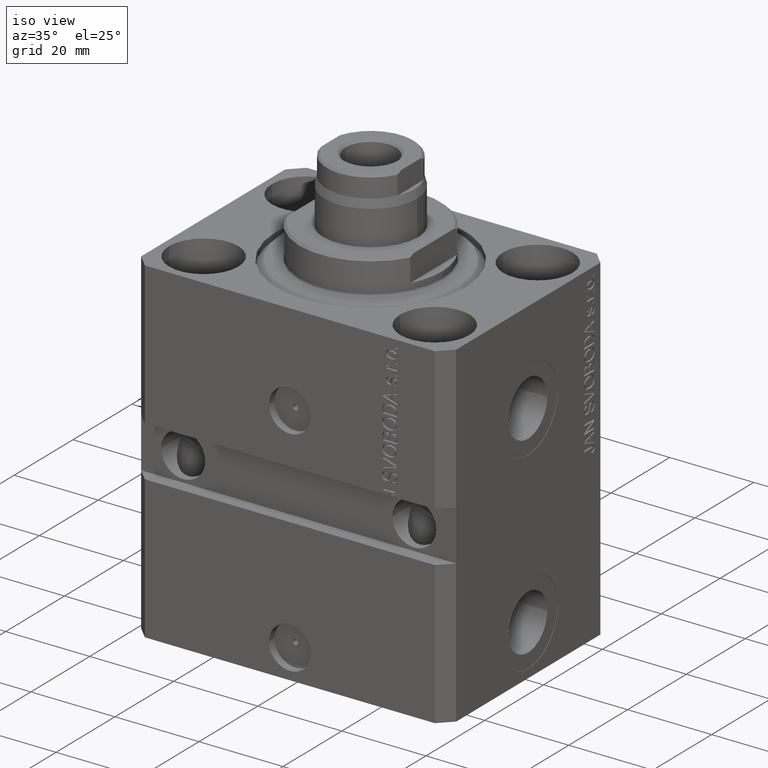
[diagram: clean part render]
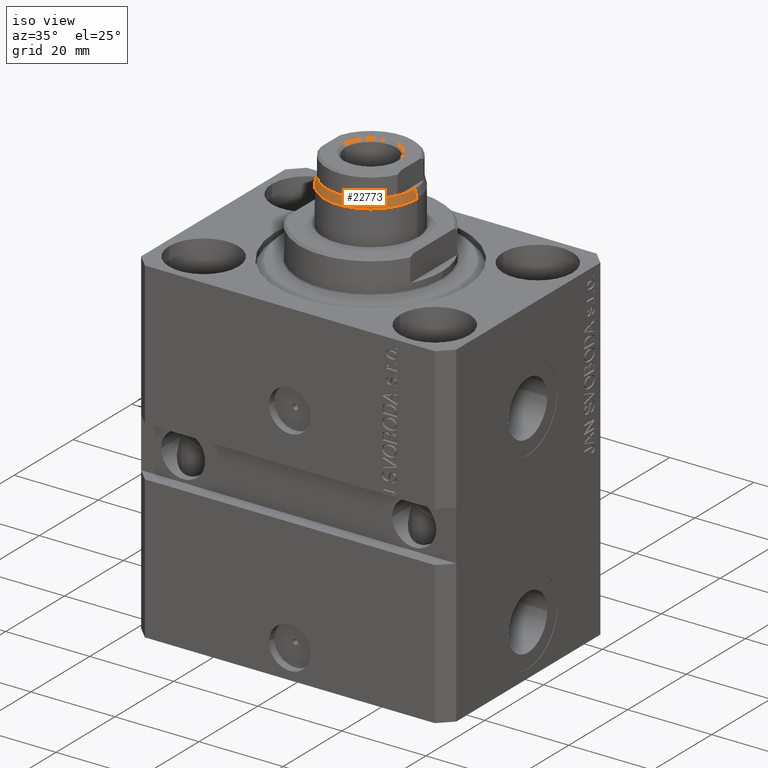
[diagram: same view with one face highlighted and labeled with its STEP entity id]
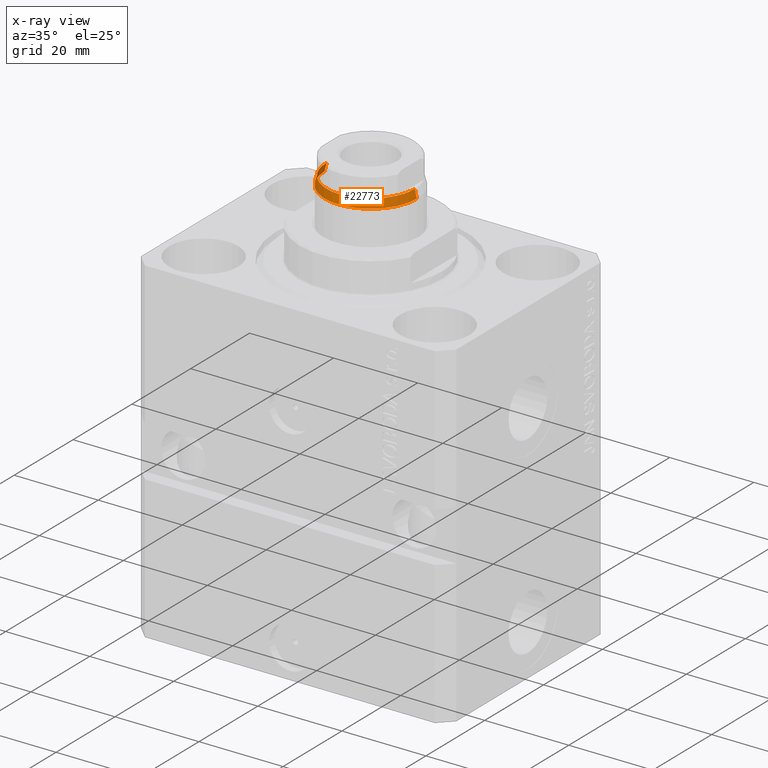
[diagram: x-ray of the same camera — body ghosted, the highlighted face saturated]
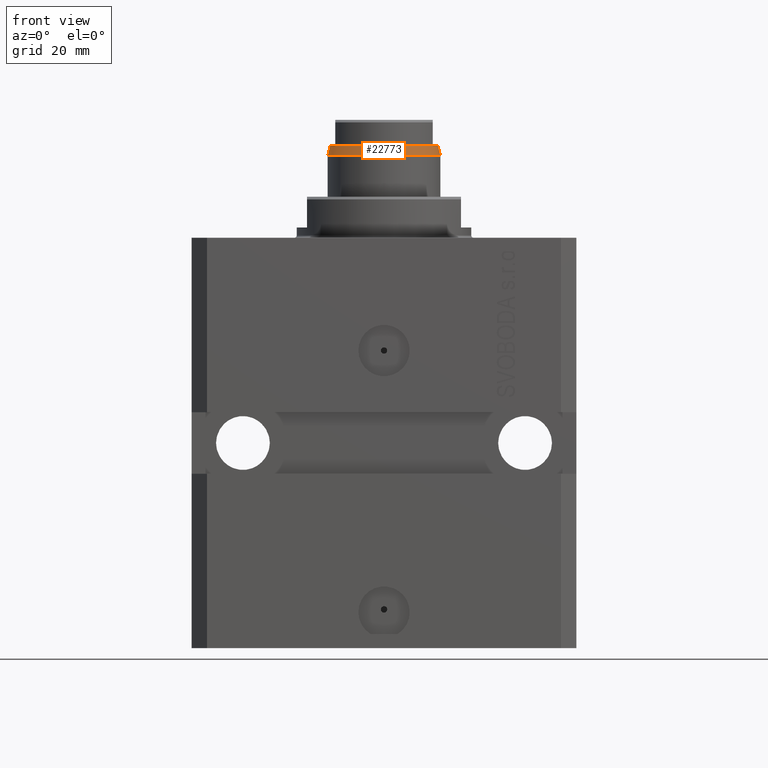
[diagram: same view with one face highlighted and labeled with its STEP entity id]
A machine part, iso view. The second image highlights one B-rep face of the part: STEP entity #22773.
The next image is the same camera in x-ray: the body ghosted, the highlighted face saturated — about 0% of this face is hidden behind the body in this view.
A second angle (front view) of the same face is appended — the face is thin or edge-on in the first view.
In plain terms, the highlighted conical surface has half-angle 14.036 deg.
Its self-contained STEP definition (entity closure, byte-faithful):
#1378 = CARTESIAN_POINT ( 'NONE',  ( 87.99999999999941735, 0.000000000000000000, -4.898580131151280951E-16 ) ) ;
#2212 = ORIENTED_EDGE ( 'NONE', *, *, #27440, .F. ) ;
#3076 = CARTESIAN_POINT ( 'NONE',  ( 85.99999999999940314, 0.000000000000000000, 11.00000000000000000 ) ) ;
#3246 = DIRECTION ( 'NONE',  ( 0.000000000000000000, 0.000000000000000000, -1.000000000000000000 ) ) ;
#3697 = DIRECTION ( 'NONE',  ( 1.000000000000000000, -0.000000000000000000, -0.000000000000000000 ) ) ;
#4603 = CARTESIAN_POINT ( 'NONE',  ( 87.99999999999941735, 0.000000000000000000, 10.50000000000000000 ) ) ;
#4800 = VERTEX_POINT ( 'NONE', #4603 ) ;
#5344 = CARTESIAN_POINT ( 'NONE',  ( 87.99999999999941735, 0.000000000000000000, 0.000000000000000000 ) ) ;
#6307 = CIRCLE ( 'NONE', #12365, 11.00000000000000000 ) ;
#6752 = EDGE_CURVE ( 'NONE', #21305, #41253, #41759, .T. ) ;
#7504 = ORIENTED_EDGE ( 'NONE', *, *, #6752, .F. ) ;
#7523 = DIRECTION ( 'NONE',  ( -0.9701425001453320984, 0.000000000000000000, 0.2425356250363321919 ) ) ;
#8441 = FACE_OUTER_BOUND ( 'NONE', #24251, .T. ) ;
#8674 = DIRECTION ( 'NONE',  ( 0.000000000000000000, 0.000000000000000000, 1.000000000000000000 ) ) ;
#9603 = EDGE_CURVE ( 'NONE', #16213, #19396, #6307, .T. ) ;
#12365 = AXIS2_PLACEMENT_3D ( 'NONE', #38805, #42814, #13954 ) ;
#13679 = DIRECTION ( 'NONE',  ( 1.000000000000000000, -0.000000000000000000, -0.000000000000000000 ) ) ;
#13954 = DIRECTION ( 'NONE',  ( 0.000000000000000000, 0.000000000000000000, -1.000000000000000000 ) ) ;
#14198 = EDGE_CURVE ( 'NONE', #4800, #19396, #39954, .T. ) ;
#14988 = CARTESIAN_POINT ( 'NONE',  ( 87.99999999999941735, 4.472135954999576946, -9.500000000000003553 ) ) ;
#16213 = VERTEX_POINT ( 'NONE', #39567 ) ;
#18953 = CIRCLE ( 'NONE', #44631, 10.50000000000000000 ) ;
#19396 = VERTEX_POINT ( 'NONE', #3076 ) ;
#19515 = DIRECTION ( 'NONE',  ( -0.9701425001453320984, 2.970204768799468905E-17, -0.2425356250363321919 ) ) ;
#21305 = VERTEX_POINT ( 'NONE', #14988 ) ;
#21707 = VECTOR ( 'NONE', #7523, 1000.000000000000000 ) ;
#22773 = ADVANCED_FACE ( 'NONE', ( #8441 ), #38591, .T. ) ;
#24119 = ORIENTED_EDGE ( 'NONE', *, *, #9603, .T. ) ;
#24251 = EDGE_LOOP ( 'NONE', ( #33066, #34453, #24119, #39092, #2212, #7504 ) ) ;
#24535 = VERTEX_POINT ( 'NONE', #39074 ) ;
#26246 = DIRECTION ( 'NONE',  ( 0.000000000000000000, 0.000000000000000000, -1.000000000000000000 ) ) ;
#26389 = EDGE_CURVE ( 'NONE', #24535, #21305, #36282, .T. ) ;
#26440 = DIRECTION ( 'NONE',  ( -1.000000000000000000, 0.000000000000000000, 0.000000000000000000 ) ) ;
#27440 = EDGE_CURVE ( 'NONE', #41253, #4800, #18953, .T. ) ;
#28271 = VECTOR ( 'NONE', #19515, 1000.000000000000000 ) ;
#30869 = LINE ( 'NONE', #41754, #28271 ) ;
#31649 = DIRECTION ( 'NONE',  ( 0.000000000000000000, 0.000000000000000000, -1.000000000000000000 ) ) ;
#33066 = ORIENTED_EDGE ( 'NONE', *, *, #26389, .F. ) ;
#33092 = CARTESIAN_POINT ( 'NONE',  ( 87.99999999999941735, 0.000000000000000000, 10.50000000000000000 ) ) ;
#34453 = ORIENTED_EDGE ( 'NONE', *, *, #36311, .T. ) ;
#36282 = CIRCLE ( 'NONE', #45363, 10.50000000000000178 ) ;
#36311 = EDGE_CURVE ( 'NONE', #24535, #16213, #30869, .T. ) ;
#37124 = DIRECTION ( 'NONE',  ( 1.000000000000000000, 0.000000000000000000, 0.000000000000000000 ) ) ;
#38591 = CONICAL_SURFACE ( 'NONE', #45369, 10.50000000000000000, 0.2449786631268633386 ) ;
#38752 = CARTESIAN_POINT ( 'NONE',  ( 87.99999999999941735, 0.000000000000000000, 0.000000000000000000 ) ) ;
#38805 = CARTESIAN_POINT ( 'NONE',  ( 85.99999999999940314, 0.000000000000000000, 0.000000000000000000 ) ) ;
#39074 = CARTESIAN_POINT ( 'NONE',  ( 87.99999999999941735, 1.316495309083404618E-15, -10.50000000000000178 ) ) ;
#39092 = ORIENTED_EDGE ( 'NONE', *, *, #14198, .F. ) ;
#39515 = CARTESIAN_POINT ( 'NONE',  ( 87.99999999999941735, 4.472135954999576946, 9.500000000000003553 ) ) ;
#39567 = CARTESIAN_POINT ( 'NONE',  ( 85.99999999999940314, 1.347111479062088405E-15, -11.00000000000000000 ) ) ;
#39954 = LINE ( 'NONE', #33092, #21707 ) ;
#41253 = VERTEX_POINT ( 'NONE', #39515 ) ;
#41754 = CARTESIAN_POINT ( 'NONE',  ( 87.99999999999941735, 1.285879139104720831E-15, -10.50000000000000000 ) ) ;
#41759 = CIRCLE ( 'NONE', #41798, 10.50000000000000000 ) ;
#41798 = AXIS2_PLACEMENT_3D ( 'NONE', #38752, #3697, #31649 ) ;
#42545 = CARTESIAN_POINT ( 'NONE',  ( 87.99999999999941735, 0.000000000000000000, 0.000000000000000000 ) ) ;
#42814 = DIRECTION ( 'NONE',  ( 1.000000000000000000, -0.000000000000000000, -0.000000000000000000 ) ) ;
#44631 = AXIS2_PLACEMENT_3D ( 'NONE', #42545, #13679, #3246 ) ;
#45363 = AXIS2_PLACEMENT_3D ( 'NONE', #1378, #37124, #26246 ) ;
#45369 = AXIS2_PLACEMENT_3D ( 'NONE', #5344, #26440, #8674 ) ;